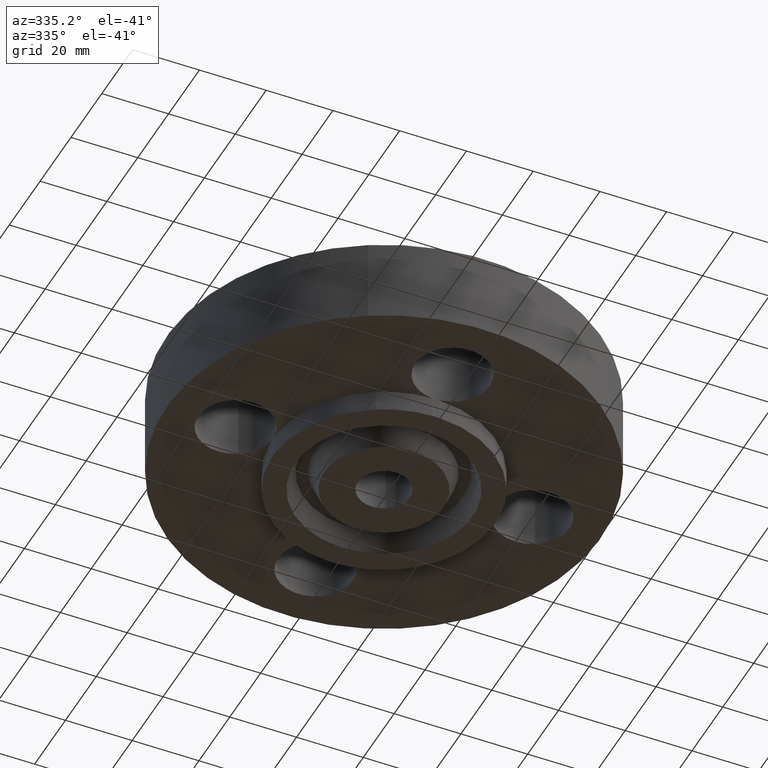
[diagram: clean part render]
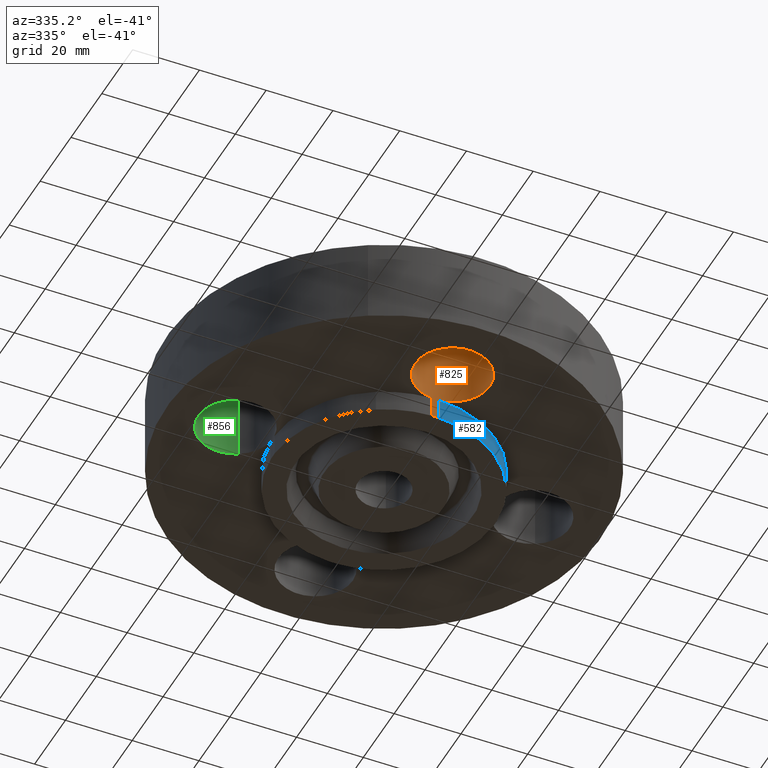
[diagram: same view with three faces highlighted in distinct colors, each labeled with its STEP entity id]
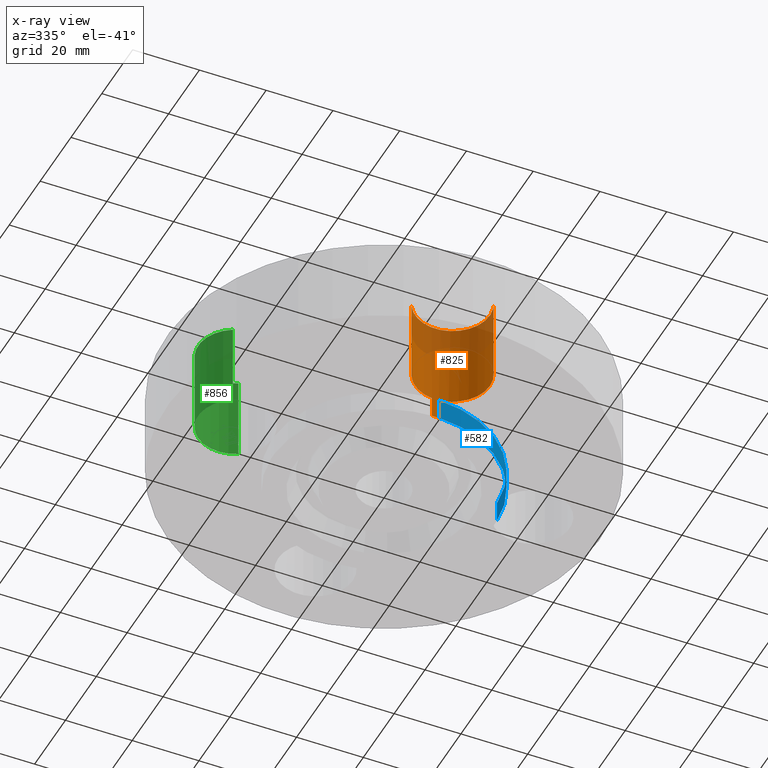
[diagram: x-ray of the same camera — body ghosted, the three highlighted faces saturated]
A machine part, auxiliary view with three faces highlighted in distinct colors.
The next image is the same camera in x-ray (body ghosted, the three faces saturated) — at least one of them is partly hidden behind the body in this view.
Their STEP definitions:

[orange] entity #825 — the highlighted cylindrical surface (partial cylindrical patch) has radius 11.176 mm, axis along (-0, 0, -1).
#684=AXIS2_PLACEMENT_3D('Circle Axis2P3D',#682,#683,$) ;
#698=AXIS2_PLACEMENT_3D('Circle Axis2P3D',#696,#697,$) ;
#777=AXIS2_PLACEMENT_3D('Cylinder Axis2P3D',#774,#775,#776) ;
#807=AXIS2_PLACEMENT_3D('Circle Axis2P3D',#805,#806,$) ;
#812=AXIS2_PLACEMENT_3D('Circle Axis2P3D',#810,#811,$) ;
#554=CARTESIAN_POINT('Vertex',(0.0405576089,-1.31187321429,-0.250000000001)) ;
#568=CARTESIAN_POINT('Vertex',(0.0405576089,-1.31187321429,0.)) ;
#571=CARTESIAN_POINT('Line Origine',(0.0405576089,-1.31187321429,-0.125000000001)) ;
#587=CARTESIAN_POINT('Vertex',(-0.0405576089,-1.31187321429,0.)) ;
#594=CARTESIAN_POINT('Vertex',(-0.0405576089,-1.31187321429,-0.250000000001)) ;
#597=CARTESIAN_POINT('Line Origine',(-0.0405576089,-1.31187321429,-0.125000000001)) ;
#682=CARTESIAN_POINT('Axis2P3D Location',(2.44773580232E-016,-1.75000000001,0.)) ;
#686=CARTESIAN_POINT('Vertex',(-0.386136327233,-1.53905276302,0.)) ;
#693=CARTESIAN_POINT('Vertex',(0.386136327233,-1.96094723699,0.)) ;
#696=CARTESIAN_POINT('Axis2P3D Location',(2.44773580232E-016,-1.75000000001,0.)) ;
#774=CARTESIAN_POINT('Axis2P3D Location',(2.14313189852E-016,-1.75000000001,0.99606299213)) ;
#779=CARTESIAN_POINT('Line Origine',(0.386136327233,-1.96094723699,0.375000000002)) ;
#783=CARTESIAN_POINT('Vertex',(0.386136327233,-1.96094723699,1.)) ;
#786=CARTESIAN_POINT('Line Origine',(-0.386136327233,-1.53905276302,0.375000000002)) ;
#790=CARTESIAN_POINT('Vertex',(-0.386136327233,-1.53905276302,1.)) ;
#805=CARTESIAN_POINT('Axis2P3D Location',(2.14313189852E-016,-1.75000000001,-0.250000000001)) ;
#810=CARTESIAN_POINT('Axis2P3D Location',(2.14313189852E-016,-1.75000000001,1.)) ;
#572=DIRECTION('Vector Direction',(0.,0.,-0.0393700787402)) ;
#598=DIRECTION('Vector Direction',(0.,0.,-0.0393700787402)) ;
#683=DIRECTION('Axis2P3D Direction',(0.,0.,-0.0393700787402)) ;
#697=DIRECTION('Axis2P3D Direction',(0.,0.,-0.0393700787402)) ;
#775=DIRECTION('Axis2P3D Direction',(-0.,0.,-0.0393700787402)) ;
#776=DIRECTION('Axis2P3D XDirection',(-0.0345504945626,0.0188750212049,0.)) ;
#780=DIRECTION('Vector Direction',(0.,0.,-0.0393700787402)) ;
#787=DIRECTION('Vector Direction',(0.,0.,-0.0393700787402)) ;
#806=DIRECTION('Axis2P3D Direction',(-0.,0.,-0.0393700787402)) ;
#811=DIRECTION('Axis2P3D Direction',(-0.,0.,-0.0393700787402)) ;
#573=VECTOR('Line Direction',#572,0.0393700787402) ;
#599=VECTOR('Line Direction',#598,0.0393700787402) ;
#781=VECTOR('Line Direction',#780,0.0393700787402) ;
#788=VECTOR('Line Direction',#787,0.0393700787402) ;
#816=ORIENTED_EDGE('',*,*,#792,.F.) ;
#817=ORIENTED_EDGE('',*,*,#688,.T.) ;
#818=ORIENTED_EDGE('',*,*,#601,.T.) ;
#819=ORIENTED_EDGE('',*,*,#809,.T.) ;
#820=ORIENTED_EDGE('',*,*,#575,.F.) ;
#821=ORIENTED_EDGE('',*,*,#700,.T.) ;
#822=ORIENTED_EDGE('',*,*,#785,.T.) ;
#823=ORIENTED_EDGE('',*,*,#814,.F.) ;
#825=ADVANCED_FACE('PartBody',(#824),#778,.F.) ;
#685=CIRCLE('generated circle',#684,0.440000000002) ;
#699=CIRCLE('generated circle',#698,0.440000000002) ;
#808=CIRCLE('generated circle',#807,0.440000000002) ;
#813=CIRCLE('generated circle',#812,0.440000000002) ;
#778=CYLINDRICAL_SURFACE('generated cylinder',#777,0.440000000002) ;
#575=EDGE_CURVE('',#569,#555,#574,.T.) ;
#601=EDGE_CURVE('',#588,#595,#600,.T.) ;
#688=EDGE_CURVE('',#687,#588,#685,.T.) ;
#700=EDGE_CURVE('',#569,#694,#699,.T.) ;
#785=EDGE_CURVE('',#694,#784,#782,.F.) ;
#792=EDGE_CURVE('',#687,#791,#789,.F.) ;
#809=EDGE_CURVE('',#595,#555,#808,.T.) ;
#814=EDGE_CURVE('',#791,#784,#813,.T.) ;
#815=EDGE_LOOP('',(#816,#817,#818,#819,#820,#821,#822,#823)) ;
#824=FACE_OUTER_BOUND('',#815,.T.) ;
#574=LINE('Line',#571,#573) ;
#600=LINE('Line',#597,#599) ;
#782=LINE('Line',#779,#781) ;
#789=LINE('Line',#786,#788) ;
#555=VERTEX_POINT('',#554) ;
#569=VERTEX_POINT('',#568) ;
#588=VERTEX_POINT('',#587) ;
#595=VERTEX_POINT('',#594) ;
#687=VERTEX_POINT('',#686) ;
#694=VERTEX_POINT('',#693) ;
#784=VERTEX_POINT('',#783) ;
#791=VERTEX_POINT('',#790) ;

[blue] entity #582 — the highlighted cylindrical surface (partial cylindrical patch) has radius 33.3375 mm, axis along (0, 0, -1).
#127=AXIS2_PLACEMENT_3D('Cylinder Axis2P3D',#124,#125,#126) ;
#550=AXIS2_PLACEMENT_3D('Circle Axis2P3D',#548,#549,$) ;
#566=AXIS2_PLACEMENT_3D('Circle Axis2P3D',#564,#565,$) ;
#124=CARTESIAN_POINT('Axis2P3D Location',(0.,0.,1.25)) ;
#548=CARTESIAN_POINT('Axis2P3D Location',(0.,0.,-0.250000000001)) ;
#552=CARTESIAN_POINT('Vertex',(1.31187321429,-0.0405576089,-0.250000000001)) ;
#554=CARTESIAN_POINT('Vertex',(0.0405576089,-1.31187321429,-0.250000000001)) ;
#557=CARTESIAN_POINT('Line Origine',(1.31187321429,-0.0405576089,-0.125000000001)) ;
#561=CARTESIAN_POINT('Vertex',(1.31187321429,-0.0405576089,0.)) ;
#564=CARTESIAN_POINT('Axis2P3D Location',(0.,0.,0.)) ;
#568=CARTESIAN_POINT('Vertex',(0.0405576089,-1.31187321429,0.)) ;
#571=CARTESIAN_POINT('Line Origine',(0.0405576089,-1.31187321429,-0.125000000001)) ;
#125=DIRECTION('Axis2P3D Direction',(0.,0.,-0.0393700787402)) ;
#126=DIRECTION('Axis2P3D XDirection',(0.0188750212049,0.0345504945626,0.)) ;
#549=DIRECTION('Axis2P3D Direction',(0.,0.,-0.0393700787402)) ;
#558=DIRECTION('Vector Direction',(0.,0.,-0.0393700787402)) ;
#565=DIRECTION('Axis2P3D Direction',(0.,0.,-0.0393700787402)) ;
#572=DIRECTION('Vector Direction',(0.,0.,-0.0393700787402)) ;
#559=VECTOR('Line Direction',#558,0.0393700787402) ;
#573=VECTOR('Line Direction',#572,0.0393700787402) ;
#577=ORIENTED_EDGE('',*,*,#556,.F.) ;
#578=ORIENTED_EDGE('',*,*,#563,.F.) ;
#579=ORIENTED_EDGE('',*,*,#570,.T.) ;
#580=ORIENTED_EDGE('',*,*,#575,.T.) ;
#582=ADVANCED_FACE('PartBody',(#581),#128,.T.) ;
#551=CIRCLE('generated circle',#550,1.31250000001) ;
#567=CIRCLE('generated circle',#566,1.31250000001) ;
#128=CYLINDRICAL_SURFACE('generated cylinder',#127,1.31250000001) ;
#556=EDGE_CURVE('',#553,#555,#551,.T.) ;
#563=EDGE_CURVE('',#562,#553,#560,.T.) ;
#570=EDGE_CURVE('',#562,#569,#567,.T.) ;
#575=EDGE_CURVE('',#569,#555,#574,.T.) ;
#576=EDGE_LOOP('',(#577,#578,#579,#580)) ;
#581=FACE_OUTER_BOUND('',#576,.T.) ;
#560=LINE('Line',#557,#559) ;
#574=LINE('Line',#571,#573) ;
#553=VERTEX_POINT('',#552) ;
#555=VERTEX_POINT('',#554) ;
#562=VERTEX_POINT('',#561) ;
#569=VERTEX_POINT('',#568) ;

[green] entity #856 — the highlighted cylindrical surface (partial cylindrical patch) has radius 11.176 mm, axis along (0, 0, -1).
#672=AXIS2_PLACEMENT_3D('Circle Axis2P3D',#670,#671,$) ;
#829=AXIS2_PLACEMENT_3D('Cylinder Axis2P3D',#826,#827,#828) ;
#847=AXIS2_PLACEMENT_3D('Circle Axis2P3D',#845,#846,$) ;
#667=CARTESIAN_POINT('Vertex',(-1.53905276302,0.386136327233,0.)) ;
#670=CARTESIAN_POINT('Axis2P3D Location',(-1.75000000001,-2.79741234551E-016,0.)) ;
#674=CARTESIAN_POINT('Vertex',(-1.96094723699,-0.386136327233,0.)) ;
#826=CARTESIAN_POINT('Axis2P3D Location',(-1.75000000001,-3.21469784777E-016,0.99606299213)) ;
#831=CARTESIAN_POINT('Line Origine',(-1.96094723699,-0.386136327233,0.375000000002)) ;
#835=CARTESIAN_POINT('Vertex',(-1.96094723699,-0.386136327233,1.)) ;
#838=CARTESIAN_POINT('Line Origine',(-1.53905276302,0.386136327233,0.375000000002)) ;
#842=CARTESIAN_POINT('Vertex',(-1.53905276302,0.386136327233,1.)) ;
#845=CARTESIAN_POINT('Axis2P3D Location',(-1.75000000001,-3.21469784777E-016,1.)) ;
#671=DIRECTION('Axis2P3D Direction',(0.,0.,-0.0393700787402)) ;
#827=DIRECTION('Axis2P3D Direction',(0.,0.,-0.0393700787402)) ;
#828=DIRECTION('Axis2P3D XDirection',(0.0188750212049,0.0345504945626,0.)) ;
#832=DIRECTION('Vector Direction',(0.,0.,-0.0393700787402)) ;
#839=DIRECTION('Vector Direction',(0.,0.,-0.0393700787402)) ;
#846=DIRECTION('Axis2P3D Direction',(0.,0.,-0.0393700787402)) ;
#833=VECTOR('Line Direction',#832,0.0393700787402) ;
#840=VECTOR('Line Direction',#839,0.0393700787402) ;
#851=ORIENTED_EDGE('',*,*,#837,.F.) ;
#852=ORIENTED_EDGE('',*,*,#676,.T.) ;
#853=ORIENTED_EDGE('',*,*,#844,.T.) ;
#854=ORIENTED_EDGE('',*,*,#849,.F.) ;
#856=ADVANCED_FACE('PartBody',(#855),#830,.F.) ;
#673=CIRCLE('generated circle',#672,0.440000000002) ;
#848=CIRCLE('generated circle',#847,0.440000000002) ;
#830=CYLINDRICAL_SURFACE('generated cylinder',#829,0.440000000002) ;
#676=EDGE_CURVE('',#675,#668,#673,.T.) ;
#837=EDGE_CURVE('',#675,#836,#834,.F.) ;
#844=EDGE_CURVE('',#668,#843,#841,.F.) ;
#849=EDGE_CURVE('',#836,#843,#848,.T.) ;
#850=EDGE_LOOP('',(#851,#852,#853,#854)) ;
#855=FACE_OUTER_BOUND('',#850,.T.) ;
#834=LINE('Line',#831,#833) ;
#841=LINE('Line',#838,#840) ;
#668=VERTEX_POINT('',#667) ;
#675=VERTEX_POINT('',#674) ;
#836=VERTEX_POINT('',#835) ;
#843=VERTEX_POINT('',#842) ;